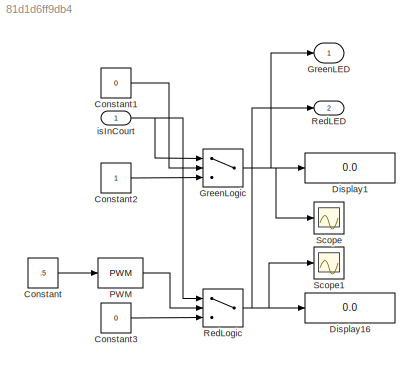
MODEL slx_81d1d6ff9db4
KIND model
CONFIG AbsTol = auto
CONFIG EnableMultiTasking = off
CONFIG FixedStep = auto
CONFIG MaxStep = auto
CONFIG MinStep = auto
CONFIG RelTol = 1e-3
CONFIG SampleTimeConstraint = Unconstrained
CONFIG SolverName = VariableStepAuto
CONFIG StartTime = 0.0
CONFIG StopTime = 1
BLOCK [Constant] Constant
  Value = .5
BLOCK [Constant] Constant1
  Value = 0
BLOCK [Constant] Constant2
BLOCK [Constant] Constant3
  Value = 0
BLOCK [Display] Display1
  Decimation = 1
BLOCK [Display] Display16
  Decimation = 1
BLOCK [Outport] GreenLED
  VectorParamsAs1DForOutWhenUnconnected = off
BLOCK [MultiPortSwitch] GreenLogic
  DataPortOrder = Zero-based contiguous
  InputSameDT = off
  Inputs = 2
  SaturateOnIntegerOverflow = off
  zeroidx = on
BLOCK [Reference] PWM  REF=simulink/Discontinuities/PWM
  DisableCoverage = on
  SourceBlock = simulink/Discontinuities/PWM
  SourceType = PWM
BLOCK [Outport] RedLED
  Port = 2
  VectorParamsAs1DForOutWhenUnconnected = off
BLOCK [MultiPortSwitch] RedLogic
  DataPortOrder = Zero-based contiguous
  InputSameDT = off
  Inputs = 2
  SaturateOnIntegerOverflow = off
  zeroidx = on
BLOCK [Scope] Scope
  Floating = off
  NumInputPorts = 1
  ScopeSpecificationString = Simulink.scopes.TimeScopeBlockCfg('CurrentConfiguration', extmgr.ConfigurationSet(extmgr.Configuration('Core','General UI',true),extmgr.Configuration('Core','Source UI',true),extmgr.Configuration('Sources','WiredSimulink',true),extmgr.Configuration('Visuals','Time Domain',true,'SerializedDisplays',{struct('MinYLimReal','0.999967','MaxYLimReal','1.00005','YLabelReal','','MinYLimMag','0.999967','Max...<+1386ch>
BLOCK [Scope] Scope1
  Floating = off
  NumInputPorts = 1
  ScopeSpecificationString = Simulink.scopes.TimeScopeBlockCfg('CurrentConfiguration', extmgr.ConfigurationSet(extmgr.Configuration('Core','General UI',true),extmgr.Configuration('Core','Source UI',true),extmgr.Configuration('Sources','WiredSimulink',true,'DataLoggingVariableName','ScopeData1'),extmgr.Configuration('Visuals','Time Domain',true,'SerializedDisplays',{struct('MinYLimReal','-0.12979','MaxYLimReal','1.02318','YLab...<+1412ch>
BLOCK [Inport] isInCourt
  OutDataTypeStr = boolean
LINE Constant1:1 -> GreenLogic:2
LINE Constant2:1 -> GreenLogic:3
LINE Constant3:1 -> RedLogic:3
LINE Constant:1 -> PWM:1
NET GreenLogic:1 -> Display1:1, GreenLED:1, Scope:1
LINE PWM:1 -> RedLogic:2
NET RedLogic:1 -> Display16:1, RedLED:1, Scope1:1
NET isInCourt:1 -> GreenLogic:1, RedLogic:1
note: NET lines group one-source signal fan-out (src -> all destinations, sorted); 1:1 wires keep LINE
